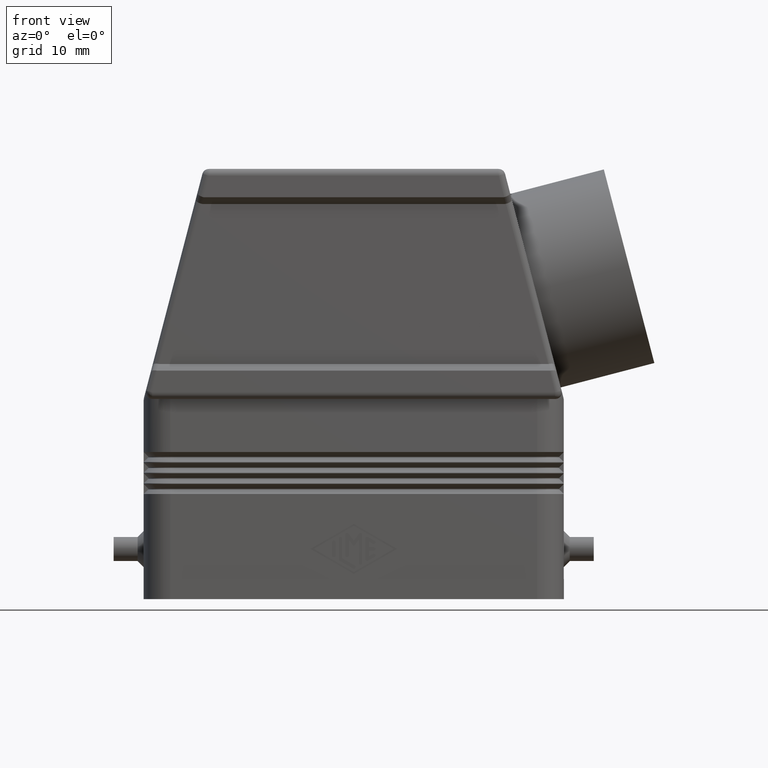
[diagram: clean part render]
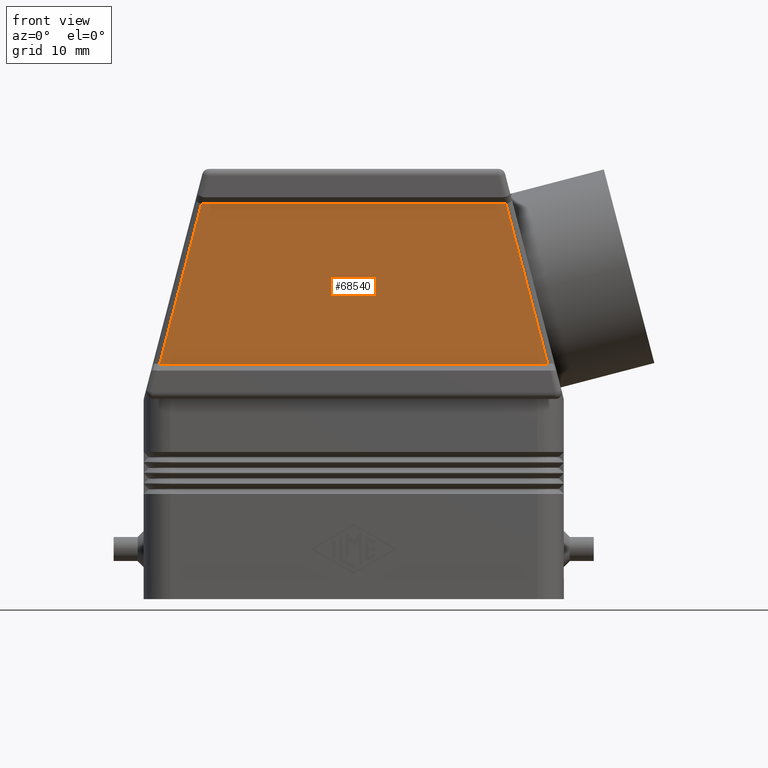
[diagram: same view with one face highlighted and labeled with its STEP entity id]
A machine part, front view. The second image highlights one B-rep face of the part: STEP entity #68540.
In plain terms, the highlighted planar face has unit normal (0, 1, 0).
Its self-contained STEP definition (entity closure, byte-faithful):
#7540=CARTESIAN_POINT('',(-22.651636115864,-17.,59.25));
#7550=VERTEX_POINT('',#7540);
#7580=CARTESIAN_POINT('',(-22.4671734772936,-17.,60.6642135623731));
#7590=DIRECTION('',(9.349411E-18,-1.,3.583941E-17));
#7600=DIRECTION('',(-0.252421897147003,-3.70388282103392E-17,
-0.967617272396844));
#7610=AXIS2_PLACEMENT_3D('',#7580,#7590,#7600);
#7620=ELLIPSE('',#7610,1.43807264422096,1.);
#7630=CARTESIAN_POINT('',(-22.830174502383,-17.,59.2727096328635));
#7640=VERTEX_POINT('',#7630);
#7650=EDGE_CURVE('',#7640,#7550,#7620,.T.);
#13280=CARTESIAN_POINT('',(22.830174502383,-17.,59.2727096328635));
#13290=VERTEX_POINT('',#13280);
#13320=CARTESIAN_POINT('',(22.4671734772936,-17.,60.6642135623731));
#13330=DIRECTION('',(0.,-1.,0.));
#13340=DIRECTION('',(0.252421897147003,0.,-0.967617272396844));
#13350=AXIS2_PLACEMENT_3D('',#13320,#13330,#13340);
#13360=ELLIPSE('',#13350,1.43807264422096,1.);
#13370=CARTESIAN_POINT('',(22.651636115864,-17.,59.25));
#13380=VERTEX_POINT('',#13370);
#13390=EDGE_CURVE('',#13380,#13290,#13360,.T.);
#15080=CARTESIAN_POINT('',(29.0969683196518,-17.,35.25));
#15090=VERTEX_POINT('',#15080);
#15120=CARTESIAN_POINT('',(22.830174502383,-17.,59.2727096328635));
#15130=DIRECTION('',(0.252421897147003,0.,-0.967617272396844));
#15140=VECTOR('',#15130,24.8266647549168);
#15150=LINE('',#15120,#15140);
#15160=EDGE_CURVE('',#13290,#15090,#15150,.T.);
#16060=CARTESIAN_POINT('',(-29.0969683196518,-17.,35.25));
#16070=DIRECTION('',(0.252421897147003,0.,0.967617272396844));
#16080=VECTOR('',#16070,24.8266647549168);
#16090=LINE('',#16060,#16080);
#16100=CARTESIAN_POINT('',(-29.0969683196518,-17.,35.25));
#16110=VERTEX_POINT('',#16100);
#16120=EDGE_CURVE('',#16110,#7640,#16090,.T.);
#68170=CARTESIAN_POINT('',(29.0969683196518,-17.,35.25));
#68180=DIRECTION('',(-1.,0.,0.));
#68190=VECTOR('',#68180,58.1939366393035);
#68200=LINE('',#68170,#68190);
#68210=EDGE_CURVE('',#15090,#16110,#68200,.T.);
#68360=CARTESIAN_POINT('',(0.,-17.,35.25));
#68370=DIRECTION('',(0.,1.,0.));
#68380=DIRECTION('',(0.,0.,1.));
#68390=AXIS2_PLACEMENT_3D('',#68360,#68370,#68380);
#68400=PLANE('',#68390);
#68410=ORIENTED_EDGE('',*,*,#68210,.F.);
#68420=ORIENTED_EDGE('',*,*,#16120,.F.);
#68430=ORIENTED_EDGE('',*,*,#7650,.F.);
#68440=CARTESIAN_POINT('',(22.651636115864,-17.,59.25));
#68450=DIRECTION('',(-1.,0.,0.));
#68460=VECTOR('',#68450,45.3032722317279);
#68470=LINE('',#68440,#68460);
#68480=EDGE_CURVE('',#13380,#7550,#68470,.T.);
#68490=ORIENTED_EDGE('',*,*,#68480,.T.);
#68500=ORIENTED_EDGE('',*,*,#13390,.F.);
#68510=ORIENTED_EDGE('',*,*,#15160,.F.);
#68520=EDGE_LOOP('',(#68510,#68500,#68490,#68430,#68420,#68410));
#68530=FACE_OUTER_BOUND('',#68520,.T.);
#68540=ADVANCED_FACE('',(#68530),#68400,.F.);